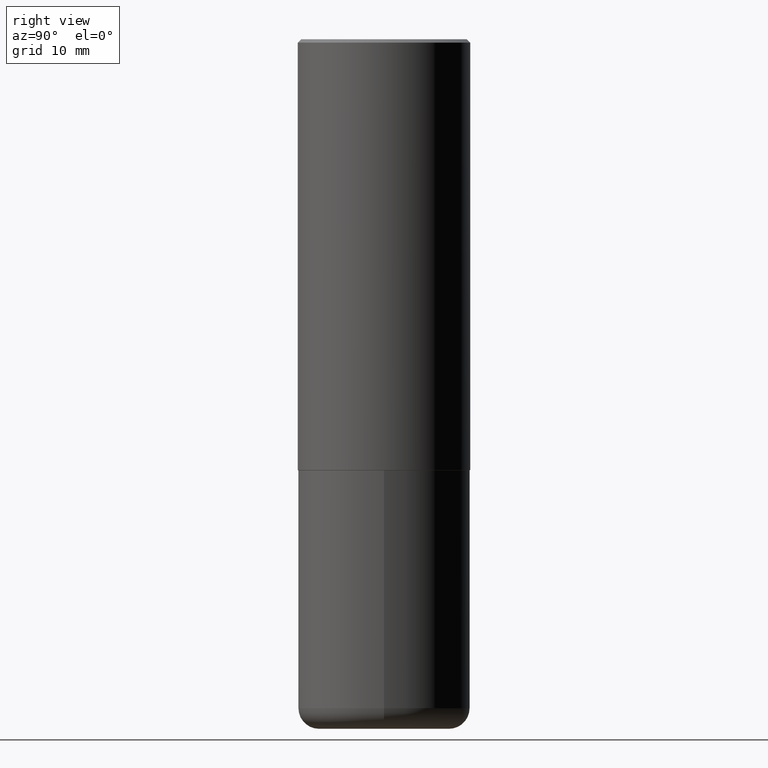
[diagram: clean part render]
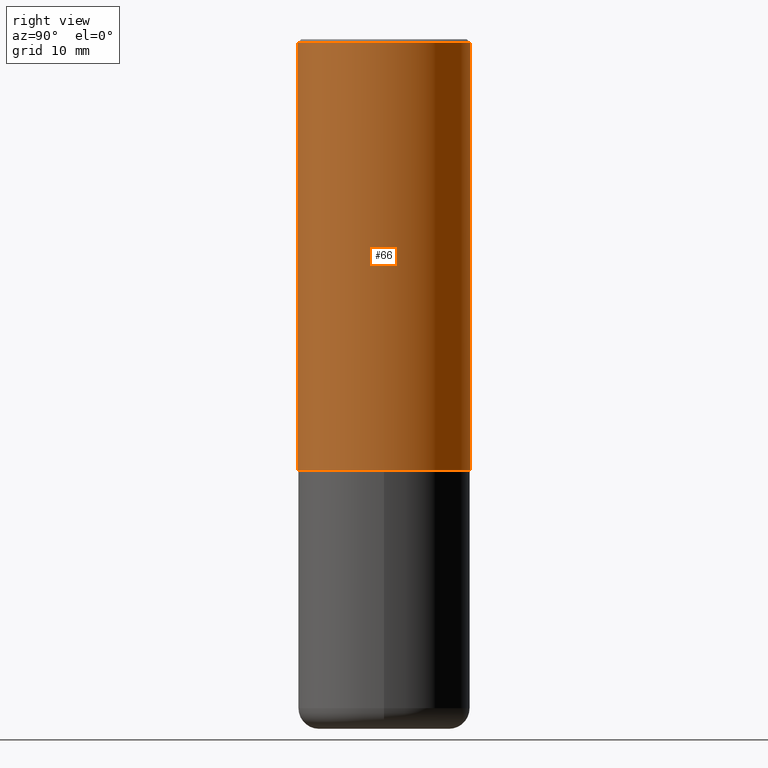
[diagram: same view with one face highlighted and labeled with its STEP entity id]
A machine part, right view. The second image highlights one B-rep face of the part: STEP entity #66.
In plain terms, the highlighted cylindrical surface (partial cylindrical patch) has radius 12.7 mm, axis along (-0, 0, 1).
Its self-contained STEP definition (entity closure, byte-faithful):
#5 = EDGE_LOOP ( 'NONE', ( #300, #267, #142, #177 ) ) ;
#6 = VERTEX_POINT ( 'NONE', #117 ) ;
#9 = DIRECTION ( 'NONE',  ( -2.444946167972934928E-29, 3.492229786509738161E-15, 1.000000000000000000 ) ) ;
#12 = CIRCLE ( 'NONE', #123, 0.5000000000000000000 ) ;
#21 = CARTESIAN_POINT ( 'NONE',  ( 3.552713678800501718E-15, 0.5000000000000001110, -1.746114893254869475E-15 ) ) ;
#29 = VERTEX_POINT ( 'NONE', #344 ) ;
#66 = ADVANCED_FACE ( 'NONE', ( #109 ), #112, .T. ) ;
#76 = AXIS2_PLACEMENT_3D ( 'NONE', #346, #9, #341 ) ;
#88 = EDGE_CURVE ( 'NONE', #6, #29, #12, .T. ) ;
#109 = FACE_OUTER_BOUND ( 'NONE', #5, .T. ) ;
#112 = CYLINDRICAL_SURFACE ( 'NONE', #76, 0.5000000000000001110 ) ;
#117 = CARTESIAN_POINT ( 'NONE',  ( -3.430248998885764992E-15, -0.5000000000000001110, -0.01999999999999835937 ) ) ;
#123 = AXIS2_PLACEMENT_3D ( 'NONE', #187, #235, #377 ) ;
#126 = LINE ( 'NONE', #408, #407 ) ;
#142 = ORIENTED_EDGE ( 'NONE', *, *, #88, .F. ) ;
#157 = VECTOR ( 'NONE', #348, 39.37007874015748143 ) ;
#177 = ORIENTED_EDGE ( 'NONE', *, *, #185, .F. ) ;
#179 = CARTESIAN_POINT ( 'NONE',  ( 6.109920473764365540E-29, -8.727082236487837614E-15, -2.499000000000000110 ) ) ;
#185 = EDGE_CURVE ( 'NONE', #200, #6, #126, .T. ) ;
#187 = CARTESIAN_POINT ( 'NONE',  ( 4.889892335945895815E-31, -6.984459573019513448E-17, -0.02000000000000010797 ) ) ;
#188 = DIRECTION ( 'NONE',  ( -6.982962677686266711E-15, -1.000000000000000000, 3.278217592397114284E-15 ) ) ;
#196 = AXIS2_PLACEMENT_3D ( 'NONE', #179, #372, #188 ) ;
#200 = VERTEX_POINT ( 'NONE', #319 ) ;
#235 = DIRECTION ( 'NONE',  ( -2.444946167972934928E-29, 3.492229786509738161E-15, 1.000000000000000000 ) ) ;
#244 = LINE ( 'NONE', #21, #157 ) ;
#266 = VERTEX_POINT ( 'NONE', #306 ) ;
#267 = ORIENTED_EDGE ( 'NONE', *, *, #357, .T. ) ;
#300 = ORIENTED_EDGE ( 'NONE', *, *, #367, .T. ) ;
#306 = CARTESIAN_POINT ( 'NONE',  ( 3.552713678800533273E-15, 0.4999999999999916178, -2.499000000000001886 ) ) ;
#319 = CARTESIAN_POINT ( 'NONE',  ( -3.491481338843073796E-15, -0.5000000000000089928, -2.498999999999998778 ) ) ;
#341 = DIRECTION ( 'NONE',  ( -6.982962677686265922E-15, -1.000000000000000000, 3.492229786509738161E-15 ) ) ;
#344 = CARTESIAN_POINT ( 'NONE',  ( 3.491481338843133355E-15, 0.4999999999999999445, -0.02000000000000185310 ) ) ;
#346 = CARTESIAN_POINT ( 'NONE',  ( 0.000000000000000000, 0.000000000000000000, 0.000000000000000000 ) ) ;
#348 = DIRECTION ( 'NONE',  ( -2.444946167972934928E-29, 3.492229786509738161E-15, 1.000000000000000000 ) ) ;
#357 = EDGE_CURVE ( 'NONE', #266, #29, #244, .T. ) ;
#367 = EDGE_CURVE ( 'NONE', #200, #266, #375, .T. ) ;
#372 = DIRECTION ( 'NONE',  ( -2.444946167972934928E-29, 3.492229786509738161E-15, 1.000000000000000000 ) ) ;
#375 = CIRCLE ( 'NONE', #196, 0.5000000000000002220 ) ;
#377 = DIRECTION ( 'NONE',  ( -6.982962677686265922E-15, -1.000000000000000000, 3.491643216902136408E-15 ) ) ;
#382 = DIRECTION ( 'NONE',  ( -2.444946167972934928E-29, 3.492229786509738161E-15, 1.000000000000000000 ) ) ;
#407 = VECTOR ( 'NONE', #382, 39.37007874015748143 ) ;
#408 = CARTESIAN_POINT ( 'NONE',  ( -3.491481338843133750E-15, -0.5000000000000001110, 1.746114893254869475E-15 ) ) ;